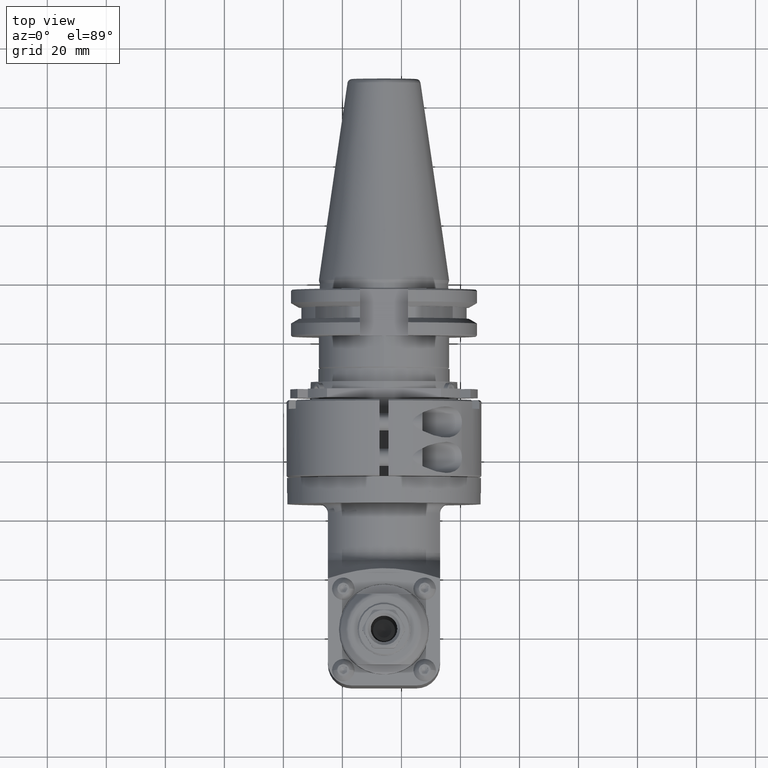
[diagram: clean part render]
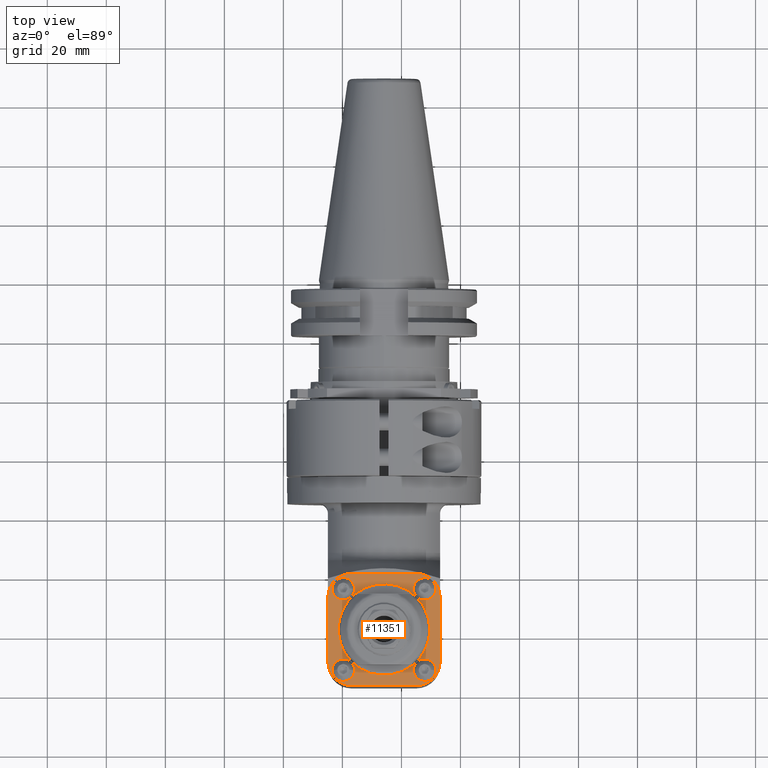
[diagram: same view with one face highlighted and labeled with its STEP entity id]
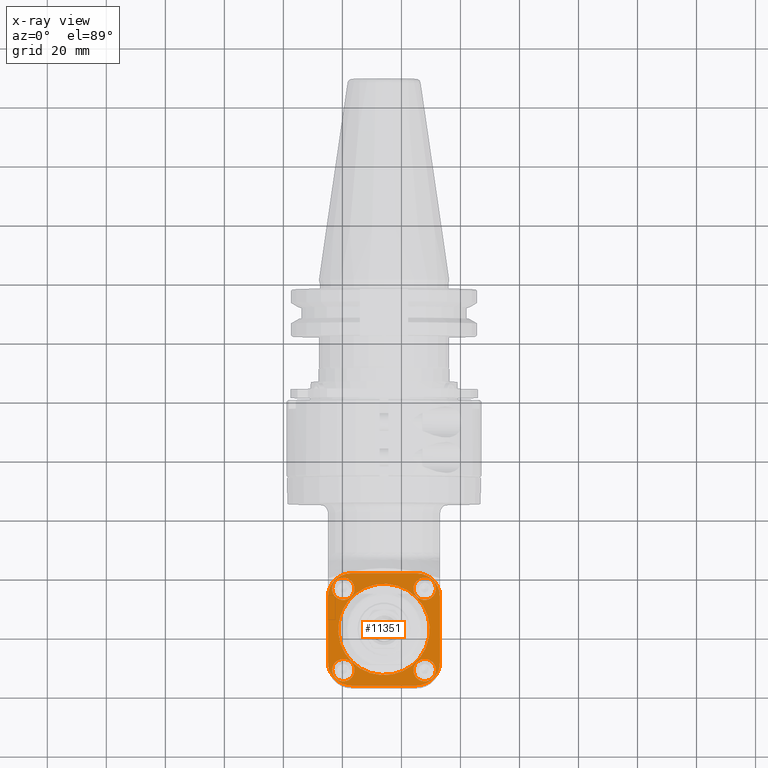
[diagram: x-ray of the same camera — body ghosted, the highlighted face saturated]
A machine part, top view. The second image highlights one B-rep face of the part: STEP entity #11351.
The next image is the same camera in x-ray: the body ghosted, the highlighted face saturated — about 0% of this face is hidden behind the body in this view.
In plain terms, the highlighted planar face has unit normal (-0, 0, -1).
Its self-contained STEP definition (entity closure, byte-faithful):
#481=LINE('',#17247,#1358);
#490=LINE('',#17286,#1367);
#491=LINE('',#17289,#1368);
#492=LINE('',#17293,#1369);
#1358=VECTOR('',#13567,22.);
#1367=VECTOR('',#13586,22.);
#1368=VECTOR('',#13589,22.);
#1369=VECTOR('',#13592,22.);
#2419=FACE_BOUND('',#3298,.T.);
#2420=FACE_BOUND('',#3299,.T.);
#2421=FACE_BOUND('',#3300,.T.);
#2422=FACE_BOUND('',#3301,.T.);
#2423=FACE_BOUND('',#3302,.T.);
#2565=FACE_OUTER_BOUND('',#3297,.T.);
#3297=EDGE_LOOP('',(#7663,#7664,#7665,#7666,#7667,#7668,#7669,#7670));
#3298=EDGE_LOOP('',(#7671));
#3299=EDGE_LOOP('',(#7672));
#3300=EDGE_LOOP('',(#7673));
#3301=EDGE_LOOP('',(#7674,#7675));
#3302=EDGE_LOOP('',(#7676));
#4150=CIRCLE('',#12170,8.);
#4151=CIRCLE('',#12172,8.);
#4152=CIRCLE('',#12173,8.);
#4153=CIRCLE('',#12174,8.);
#4154=CIRCLE('',#12175,15.5);
#4155=CIRCLE('',#12176,3.8);
#4156=CIRCLE('',#12177,3.8);
#4157=CIRCLE('',#12178,3.8);
#4158=CIRCLE('',#12179,3.8);
#4159=CIRCLE('',#12180,3.8);
#4787=VERTEX_POINT('',#17243);
#4789=VERTEX_POINT('',#17246);
#4799=VERTEX_POINT('',#17280);
#4800=VERTEX_POINT('',#17284);
#4801=VERTEX_POINT('',#17285);
#4802=VERTEX_POINT('',#17288);
#4803=VERTEX_POINT('',#17290);
#4804=VERTEX_POINT('',#17292);
#4805=VERTEX_POINT('',#17295);
#4806=VERTEX_POINT('',#17297);
#4807=VERTEX_POINT('',#17299);
#4808=VERTEX_POINT('',#17301);
#4809=VERTEX_POINT('',#17302);
#4810=VERTEX_POINT('',#17305);
#5919=EDGE_CURVE('',#4789,#4787,#481,.T.);
#5932=EDGE_CURVE('',#4787,#4799,#4150,.T.);
#5933=EDGE_CURVE('',#4800,#4801,#490,.T.);
#5934=EDGE_CURVE('',#4801,#4789,#4151,.T.);
#5935=EDGE_CURVE('',#4799,#4802,#491,.T.);
#5936=EDGE_CURVE('',#4802,#4803,#4152,.T.);
#5937=EDGE_CURVE('',#4803,#4804,#492,.T.);
#5938=EDGE_CURVE('',#4804,#4800,#4153,.T.);
#5939=EDGE_CURVE('',#4805,#4805,#4154,.T.);
#5940=EDGE_CURVE('',#4806,#4806,#4155,.T.);
#5941=EDGE_CURVE('',#4807,#4807,#4156,.T.);
#5942=EDGE_CURVE('',#4808,#4809,#4157,.T.);
#5943=EDGE_CURVE('',#4809,#4808,#4158,.T.);
#5944=EDGE_CURVE('',#4810,#4810,#4159,.T.);
#7663=ORIENTED_EDGE('',*,*,#5933,.T.);
#7664=ORIENTED_EDGE('',*,*,#5934,.T.);
#7665=ORIENTED_EDGE('',*,*,#5919,.T.);
#7666=ORIENTED_EDGE('',*,*,#5932,.T.);
#7667=ORIENTED_EDGE('',*,*,#5935,.T.);
#7668=ORIENTED_EDGE('',*,*,#5936,.T.);
#7669=ORIENTED_EDGE('',*,*,#5937,.T.);
#7670=ORIENTED_EDGE('',*,*,#5938,.T.);
#7671=ORIENTED_EDGE('',*,*,#5939,.T.);
#7672=ORIENTED_EDGE('',*,*,#5940,.T.);
#7673=ORIENTED_EDGE('',*,*,#5941,.T.);
#7674=ORIENTED_EDGE('',*,*,#5942,.T.);
#7675=ORIENTED_EDGE('',*,*,#5943,.T.);
#7676=ORIENTED_EDGE('',*,*,#5944,.T.);
#10983=PLANE('',#12171);
#11351=ADVANCED_FACE('',(#2565,#2419,#2420,#2421,#2422,#2423),#10983,.F.);
#12170=AXIS2_PLACEMENT_3D('',#17282,#13582,#13583);
#12171=AXIS2_PLACEMENT_3D('',#17283,#13584,#13585);
#12172=AXIS2_PLACEMENT_3D('',#17287,#13587,#13588);
#12173=AXIS2_PLACEMENT_3D('',#17291,#13590,#13591);
#12174=AXIS2_PLACEMENT_3D('',#17294,#13593,#13594);
#12175=AXIS2_PLACEMENT_3D('',#17296,#13595,#13596);
#12176=AXIS2_PLACEMENT_3D('',#17298,#13597,#13598);
#12177=AXIS2_PLACEMENT_3D('',#17300,#13599,#13600);
#12178=AXIS2_PLACEMENT_3D('',#17303,#13601,#13602);
#12179=AXIS2_PLACEMENT_3D('',#17304,#13603,#13604);
#12180=AXIS2_PLACEMENT_3D('',#17306,#13605,#13606);
#13567=DIRECTION('',(1.,0.,0.));
#13582=DIRECTION('center_axis',(0.,-1.,0.));
#13583=DIRECTION('ref_axis',(0.,0.,-1.));
#13584=DIRECTION('center_axis',(0.,1.,0.));
#13585=DIRECTION('ref_axis',(0.707106781186548,0.,-0.707106781186548));
#13586=DIRECTION('',(0.,0.,-1.));
#13587=DIRECTION('center_axis',(0.,-1.,0.));
#13588=DIRECTION('ref_axis',(-1.,0.,0.));
#13589=DIRECTION('',(0.,0.,1.));
#13590=DIRECTION('center_axis',(0.,-1.,0.));
#13591=DIRECTION('ref_axis',(1.,0.,0.));
#13592=DIRECTION('',(-1.,0.,0.));
#13593=DIRECTION('center_axis',(0.,-1.,0.));
#13594=DIRECTION('ref_axis',(0.,0.,1.));
#13595=DIRECTION('center_axis',(0.,1.,0.));
#13596=DIRECTION('ref_axis',(-0.707106781186547,0.,0.707106781186547));
#13597=DIRECTION('center_axis',(0.,1.,0.));
#13598=DIRECTION('ref_axis',(0.,0.,1.));
#13599=DIRECTION('center_axis',(0.,1.,0.));
#13600=DIRECTION('ref_axis',(1.,0.,0.));
#13601=DIRECTION('center_axis',(0.,1.,0.));
#13602=DIRECTION('ref_axis',(0.,0.,-1.));
#13603=DIRECTION('center_axis',(0.,1.,0.));
#13604=DIRECTION('ref_axis',(0.,0.,1.));
#13605=DIRECTION('center_axis',(0.,1.,0.));
#13606=DIRECTION('ref_axis',(-1.,0.,0.));
#17243=CARTESIAN_POINT('',(119.,-30.5,-19.));
#17246=CARTESIAN_POINT('',(97.,-30.5,-19.));
#17247=CARTESIAN_POINT('',(97.,-30.5,-19.));
#17280=CARTESIAN_POINT('',(127.,-30.5,-11.));
#17282=CARTESIAN_POINT('Origin',(119.,-30.5,-11.));
#17283=CARTESIAN_POINT('Origin',(95.94382938077,-30.5,-12.05617061923));
#17284=CARTESIAN_POINT('',(89.,-30.5,11.));
#17285=CARTESIAN_POINT('',(89.,-30.5,-11.));
#17286=CARTESIAN_POINT('',(89.,-30.5,11.));
#17287=CARTESIAN_POINT('Origin',(97.,-30.5,-11.));
#17288=CARTESIAN_POINT('',(127.,-30.5,11.));
#17289=CARTESIAN_POINT('',(127.,-30.5,-11.));
#17290=CARTESIAN_POINT('',(119.,-30.5,19.));
#17291=CARTESIAN_POINT('Origin',(119.,-30.5,11.));
#17292=CARTESIAN_POINT('',(97.,-30.5,19.));
#17293=CARTESIAN_POINT('',(119.,-30.5,19.));
#17294=CARTESIAN_POINT('Origin',(97.,-30.5,11.));
#17295=CARTESIAN_POINT('',(97.03984489161,-30.5,10.96015510839));
#17296=CARTESIAN_POINT('Origin',(108.,-30.5,0.));
#17297=CARTESIAN_POINT('',(94.21141776686,-30.5,17.58858223314));
#17298=CARTESIAN_POINT('Origin',(94.21141776686,-30.5,13.78858223314));
#17299=CARTESIAN_POINT('',(121.788582233264,-30.5,17.58858223314));
#17300=CARTESIAN_POINT('Origin',(121.7885822331,-30.5,13.78858223314));
#17301=CARTESIAN_POINT('',(121.7885822331,-30.5,-17.58858223314));
#17302=CARTESIAN_POINT('',(121.7885822331,-30.5,-9.988582233138));
#17303=CARTESIAN_POINT('Origin',(121.7885822331,-30.5,-13.78858223314));
#17304=CARTESIAN_POINT('Origin',(121.7885822331,-30.5,-13.78858223314));
#17305=CARTESIAN_POINT('',(94.2114177668762,-30.5,-9.98858223314));
#17306=CARTESIAN_POINT('Origin',(94.21141776686,-30.5,-13.78858223314));